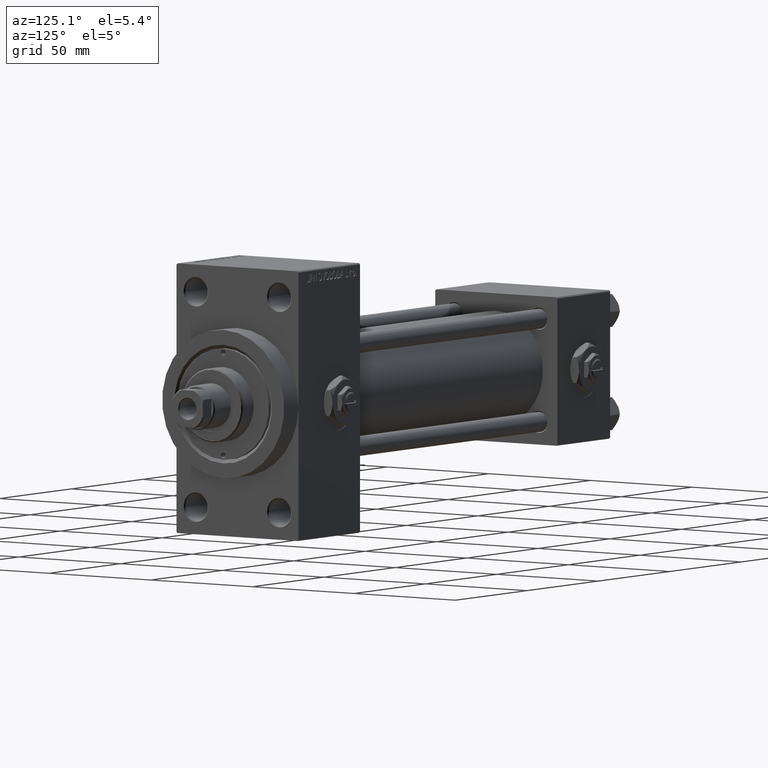
[diagram: clean part render]
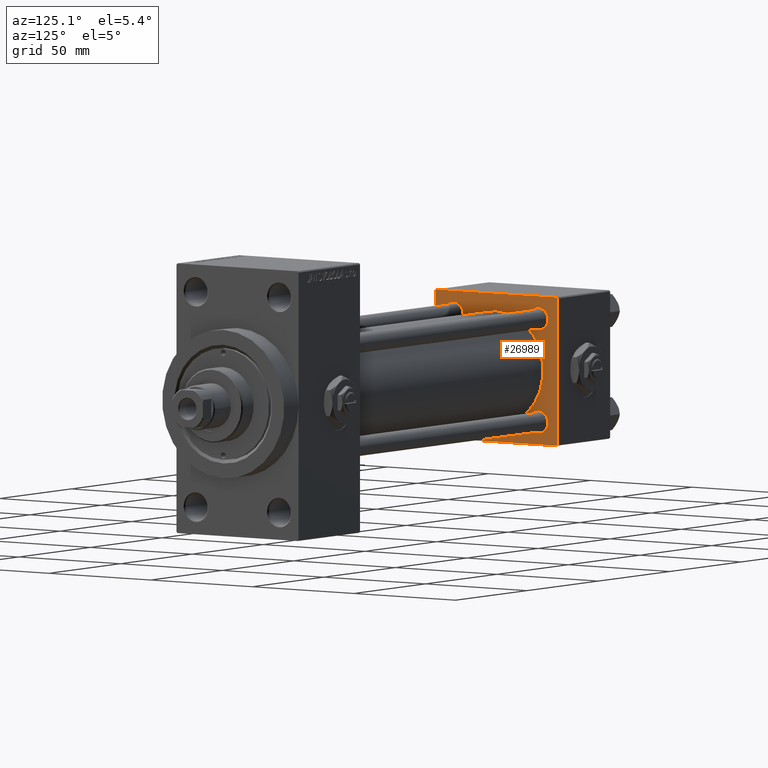
[diagram: same view with one face highlighted and labeled with its STEP entity id]
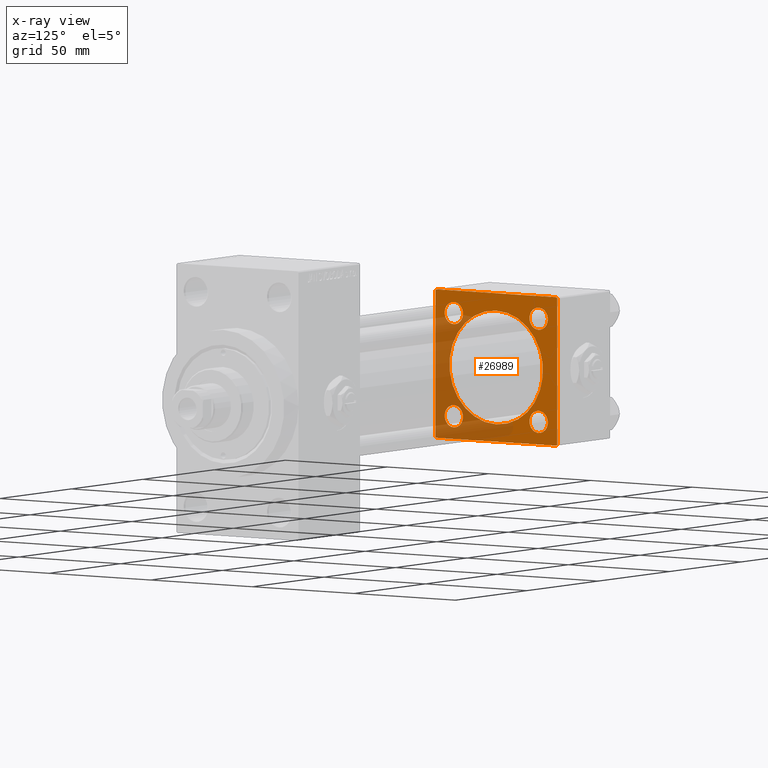
[diagram: x-ray of the same camera — body ghosted, the highlighted face saturated]
A machine part, auxiliary view. The second image highlights one B-rep face of the part: STEP entity #26989.
The next image is the same camera in x-ray: the body ghosted, the highlighted face saturated — about 37% of this face is hidden behind the body in this view.
In plain terms, the highlighted planar face has unit normal (-1, 0, 0).
Its self-contained STEP definition (entity closure, byte-faithful):
#57 = EDGE_LOOP ( 'NONE', ( #46427, #3626 ) ) ;
#232 = ORIENTED_EDGE ( 'NONE', *, *, #43964, .T. ) ;
#695 = VECTOR ( 'NONE', #1582, 1000.000000000000000 ) ;
#1582 = DIRECTION ( 'NONE',  ( 0.000000000000000000, 0.000000000000000000, -1.000000000000000000 ) ) ;
#2185 = DIRECTION ( 'NONE',  ( -1.000000000000000000, 0.000000000000000000, -0.000000000000000000 ) ) ;
#2260 = ORIENTED_EDGE ( 'NONE', *, *, #43808, .T. ) ;
#2485 = EDGE_CURVE ( 'NONE', #9506, #43344, #24490, .T. ) ;
#2680 = DIRECTION ( 'NONE',  ( 0.000000000000000000, -0.7071067811865474617, 0.7071067811865474617 ) ) ;
#2757 = FACE_BOUND ( 'NONE', #42486, .T. ) ;
#3626 = ORIENTED_EDGE ( 'NONE', *, *, #29939, .F. ) ;
#4741 = ORIENTED_EDGE ( 'NONE', *, *, #8929, .T. ) ;
#5419 = VECTOR ( 'NONE', #30300, 999.9999999999998863 ) ;
#5470 = VERTEX_POINT ( 'NONE', #23716 ) ;
#5826 = LINE ( 'NONE', #9607, #695 ) ;
#6515 = EDGE_LOOP ( 'NONE', ( #12097, #45250 ) ) ;
#7159 = EDGE_CURVE ( 'NONE', #9023, #9393, #46193, .T. ) ;
#7223 = CARTESIAN_POINT ( 'NONE',  ( 37.00000000000000711, -2.602085213965210642E-15, 23.00000000000000000 ) ) ;
#7308 = DIRECTION ( 'NONE',  ( -1.000000000000000000, 0.000000000000000000, -0.000000000000000000 ) ) ;
#8744 = EDGE_LOOP ( 'NONE', ( #23798, #15281 ) ) ;
#8929 = EDGE_CURVE ( 'NONE', #17032, #40009, #5826, .T. ) ;
#9023 = VERTEX_POINT ( 'NONE', #25350 ) ;
#9081 = DIRECTION ( 'NONE',  ( 0.000000000000000000, 0.000000000000000000, 1.000000000000000000 ) ) ;
#9112 = CARTESIAN_POINT ( 'NONE',  ( 37.00000000000000000, 20.84999999999999787, -20.85000000000000142 ) ) ;
#9158 = CARTESIAN_POINT ( 'NONE',  ( 37.00000000000000000, 29.99999999999999289, -29.50000000000000000 ) ) ;
#9327 = DIRECTION ( 'NONE',  ( -1.000000000000000000, 0.000000000000000000, -0.000000000000000000 ) ) ;
#9393 = VERTEX_POINT ( 'NONE', #10026 ) ;
#9506 = VERTEX_POINT ( 'NONE', #12765 ) ;
#9607 = CARTESIAN_POINT ( 'NONE',  ( 37.00000000000000000, -30.00000000000000000, 29.99999999999999289 ) ) ;
#9647 = EDGE_CURVE ( 'NONE', #40009, #21452, #29494, .T. ) ;
#10026 = CARTESIAN_POINT ( 'NONE',  ( 37.00000000000000000, 20.84999999999999787, 25.35000000000005826 ) ) ;
#10716 = EDGE_LOOP ( 'NONE', ( #11505, #16787 ) ) ;
#10924 = CARTESIAN_POINT ( 'NONE',  ( 37.00000000000000000, 29.99999999999999289, 29.50000000000000000 ) ) ;
#11505 = ORIENTED_EDGE ( 'NONE', *, *, #7159, .T. ) ;
#11671 = VERTEX_POINT ( 'NONE', #20429 ) ;
#11701 = LINE ( 'NONE', #45733, #32511 ) ;
#12097 = ORIENTED_EDGE ( 'NONE', *, *, #45258, .T. ) ;
#12618 = AXIS2_PLACEMENT_3D ( 'NONE', #46101, #38854, #42592 ) ;
#12765 = CARTESIAN_POINT ( 'NONE',  ( 37.00000000000000000, 20.84999999999999787, -16.34999999999994102 ) ) ;
#13050 = CARTESIAN_POINT ( 'NONE',  ( 37.00000000000000000, -29.49999999999998579, 29.99999999999999289 ) ) ;
#13473 = CIRCLE ( 'NONE', #41426, 4.500000000000059508 ) ;
#13943 = EDGE_CURVE ( 'NONE', #43344, #9506, #47854, .T. ) ;
#14317 = CARTESIAN_POINT ( 'NONE',  ( 37.00000000000000000, 0.000000000000000000, 0.000000000000000000 ) ) ;
#14565 = DIRECTION ( 'NONE',  ( -1.000000000000000000, 0.000000000000000000, -0.000000000000000000 ) ) ;
#15281 = ORIENTED_EDGE ( 'NONE', *, *, #2485, .T. ) ;
#15661 = EDGE_LOOP ( 'NONE', ( #39045, #232, #23139, #37702, #36273, #19677, #4741, #23109 ) ) ;
#16787 = ORIENTED_EDGE ( 'NONE', *, *, #47690, .T. ) ;
#17001 = CARTESIAN_POINT ( 'NONE',  ( 37.00000000000000000, 20.84999999999999787, -25.35000000000005826 ) ) ;
#17032 = VERTEX_POINT ( 'NONE', #46326 ) ;
#17117 = CARTESIAN_POINT ( 'NONE',  ( 37.00000000000000711, -2.602085213965210642E-15, 0.000000000000000000 ) ) ;
#17134 = CARTESIAN_POINT ( 'NONE',  ( 37.00000000000000000, -20.84999999999999076, -25.35000000000006182 ) ) ;
#17351 = DIRECTION ( 'NONE',  ( 1.000000000000000000, -0.000000000000000000, 0.000000000000000000 ) ) ;
#18046 = FACE_BOUND ( 'NONE', #10716, .T. ) ;
#18361 = AXIS2_PLACEMENT_3D ( 'NONE', #46349, #35099, #27835 ) ;
#18439 = EDGE_CURVE ( 'NONE', #46113, #5470, #32067, .T. ) ;
#18988 = CIRCLE ( 'NONE', #12618, 4.500000000000059508 ) ;
#19070 = EDGE_CURVE ( 'NONE', #47246, #20346, #29550, .T. ) ;
#19198 = CARTESIAN_POINT ( 'NONE',  ( 37.00000000000000000, -20.84999999999999076, 16.34999999999994458 ) ) ;
#19415 = EDGE_CURVE ( 'NONE', #11671, #48372, #34482, .T. ) ;
#19442 = EDGE_CURVE ( 'NONE', #39882, #21452, #24992, .T. ) ;
#19677 = ORIENTED_EDGE ( 'NONE', *, *, #41206, .T. ) ;
#20143 = VERTEX_POINT ( 'NONE', #9158 ) ;
#20346 = VERTEX_POINT ( 'NONE', #13050 ) ;
#20429 = CARTESIAN_POINT ( 'NONE',  ( 37.00000000000000000, -20.84999999999999076, -16.34999999999994458 ) ) ;
#20917 = CARTESIAN_POINT ( 'NONE',  ( 37.00000000000000000, -20.84999999999999076, -20.85000000000000497 ) ) ;
#20944 = EDGE_CURVE ( 'NONE', #32483, #37379, #44095, .T. ) ;
#21000 = CARTESIAN_POINT ( 'NONE',  ( 37.00000000000000000, -20.84999999999999076, -20.85000000000000497 ) ) ;
#21233 = DIRECTION ( 'NONE',  ( 0.000000000000000000, -1.000000000000000000, -1.156482317317871725E-16 ) ) ;
#21452 = VERTEX_POINT ( 'NONE', #30084 ) ;
#21794 = ORIENTED_EDGE ( 'NONE', *, *, #20944, .T. ) ;
#21813 = FACE_BOUND ( 'NONE', #8744, .T. ) ;
#22535 = AXIS2_PLACEMENT_3D ( 'NONE', #25947, #29955, #30210 ) ;
#22562 = VERTEX_POINT ( 'NONE', #10924 ) ;
#22589 = DIRECTION ( 'NONE',  ( 0.000000000000000000, 0.000000000000000000, 1.000000000000000000 ) ) ;
#22901 = VECTOR ( 'NONE', #2680, 1000.000000000000114 ) ;
#22968 = DIRECTION ( 'NONE',  ( -0.000000000000000000, -0.7071067811865474617, -0.7071067811865474617 ) ) ;
#23109 = ORIENTED_EDGE ( 'NONE', *, *, #9647, .T. ) ;
#23139 = ORIENTED_EDGE ( 'NONE', *, *, #41067, .F. ) ;
#23440 = AXIS2_PLACEMENT_3D ( 'NONE', #14317, #14565, #29824 ) ;
#23716 = CARTESIAN_POINT ( 'NONE',  ( 37.00000000000000711, 2.146024240737016609E-16, -23.00000000000000000 ) ) ;
#23798 = ORIENTED_EDGE ( 'NONE', *, *, #13943, .T. ) ;
#24090 = VECTOR ( 'NONE', #21233, 1000.000000000000000 ) ;
#24387 = DIRECTION ( 'NONE',  ( -1.000000000000000000, 0.000000000000000000, -0.000000000000000000 ) ) ;
#24490 = CIRCLE ( 'NONE', #46836, 4.500000000000059508 ) ;
#24639 = AXIS2_PLACEMENT_3D ( 'NONE', #37086, #9327, #44324 ) ;
#24992 = LINE ( 'NONE', #40264, #24090 ) ;
#25137 = CIRCLE ( 'NONE', #41136, 23.00000000000000000 ) ;
#25350 = CARTESIAN_POINT ( 'NONE',  ( 37.00000000000000000, 20.84999999999999787, 16.34999999999994102 ) ) ;
#25566 = FACE_BOUND ( 'NONE', #6515, .T. ) ;
#25796 = LINE ( 'NONE', #29807, #5419 ) ;
#25813 = FACE_OUTER_BOUND ( 'NONE', #15661, .T. ) ;
#25947 = CARTESIAN_POINT ( 'NONE',  ( 37.00000000000000000, -20.84999999999999076, 20.85000000000000497 ) ) ;
#26109 = VECTOR ( 'NONE', #39787, 1000.000000000000000 ) ;
#26437 = AXIS2_PLACEMENT_3D ( 'NONE', #17117, #17351, #43391 ) ;
#26989 = ADVANCED_FACE ( 'NONE', ( #25566, #21813, #2757, #18046, #33332, #25813 ), #48577, .F. ) ;
#27835 = DIRECTION ( 'NONE',  ( 0.000000000000000000, 0.000000000000000000, 1.000000000000000000 ) ) ;
#28319 = CARTESIAN_POINT ( 'NONE',  ( 37.00000000000000000, 29.49999999999997868, -30.00000000000000000 ) ) ;
#28835 = CARTESIAN_POINT ( 'NONE',  ( 37.00000000000000711, -2.602085213965210642E-15, 0.000000000000000000 ) ) ;
#29494 = LINE ( 'NONE', #48245, #48777 ) ;
#29550 = LINE ( 'NONE', #45034, #31261 ) ;
#29737 = LINE ( 'NONE', #40745, #22901 ) ;
#29807 = CARTESIAN_POINT ( 'NONE',  ( 37.00000000000000000, 29.99999999999999289, -29.50000000000000000 ) ) ;
#29824 = DIRECTION ( 'NONE',  ( -0.000000000000000000, 0.000000000000000000, 1.000000000000000000 ) ) ;
#29939 = EDGE_CURVE ( 'NONE', #5470, #46113, #25137, .T. ) ;
#29955 = DIRECTION ( 'NONE',  ( -1.000000000000000000, 0.000000000000000000, -0.000000000000000000 ) ) ;
#30084 = CARTESIAN_POINT ( 'NONE',  ( 37.00000000000000000, -29.50000000000000000, -30.00000000000000711 ) ) ;
#30210 = DIRECTION ( 'NONE',  ( 0.000000000000000000, 0.000000000000000000, 1.000000000000000000 ) ) ;
#30300 = DIRECTION ( 'NONE',  ( -0.000000000000000000, 0.7071067811865574537, 0.7071067811865376918 ) ) ;
#31261 = VECTOR ( 'NONE', #44792, 1000.000000000000000 ) ;
#31698 = CARTESIAN_POINT ( 'NONE',  ( 37.00000000000000000, 29.49999999999999289, 30.00000000000000000 ) ) ;
#31940 = DIRECTION ( 'NONE',  ( 0.000000000000000000, 0.000000000000000000, 1.000000000000000000 ) ) ;
#32067 = CIRCLE ( 'NONE', #26437, 23.00000000000000000 ) ;
#32483 = VERTEX_POINT ( 'NONE', #43661 ) ;
#32511 = VECTOR ( 'NONE', #22968, 1000.000000000000114 ) ;
#33332 = FACE_BOUND ( 'NONE', #57, .T. ) ;
#33503 = DIRECTION ( 'NONE',  ( 0.000000000000000000, 0.7071067811865474617, -0.7071067811865474617 ) ) ;
#33862 = CARTESIAN_POINT ( 'NONE',  ( 37.00000000000000000, 20.84999999999999787, -20.85000000000000142 ) ) ;
#34482 = CIRCLE ( 'NONE', #45653, 4.500000000000059508 ) ;
#35099 = DIRECTION ( 'NONE',  ( -1.000000000000000000, 0.000000000000000000, -0.000000000000000000 ) ) ;
#35864 = DIRECTION ( 'NONE',  ( 1.000000000000000000, -0.000000000000000000, 0.000000000000000000 ) ) ;
#36186 = DIRECTION ( 'NONE',  ( -1.000000000000000000, 0.000000000000000000, -0.000000000000000000 ) ) ;
#36273 = ORIENTED_EDGE ( 'NONE', *, *, #19070, .T. ) ;
#37086 = CARTESIAN_POINT ( 'NONE',  ( 37.00000000000000000, 20.84999999999999787, 20.85000000000000142 ) ) ;
#37379 = VERTEX_POINT ( 'NONE', #19198 ) ;
#37702 = ORIENTED_EDGE ( 'NONE', *, *, #41143, .T. ) ;
#38278 = AXIS2_PLACEMENT_3D ( 'NONE', #33862, #7308, #22589 ) ;
#38854 = DIRECTION ( 'NONE',  ( -1.000000000000000000, 0.000000000000000000, -0.000000000000000000 ) ) ;
#39045 = ORIENTED_EDGE ( 'NONE', *, *, #19442, .F. ) ;
#39651 = DIRECTION ( 'NONE',  ( 0.000000000000000000, 0.000000000000000000, 1.000000000000000000 ) ) ;
#39787 = DIRECTION ( 'NONE',  ( 0.000000000000000000, 0.000000000000000000, -1.000000000000000000 ) ) ;
#39882 = VERTEX_POINT ( 'NONE', #28319 ) ;
#40009 = VERTEX_POINT ( 'NONE', #48540 ) ;
#40264 = CARTESIAN_POINT ( 'NONE',  ( 37.00000000000000000, 29.99999999999999289, -30.00000000000000000 ) ) ;
#40745 = CARTESIAN_POINT ( 'NONE',  ( 37.00000000000000000, 29.49999999999999289, 30.00000000000000000 ) ) ;
#41067 = EDGE_CURVE ( 'NONE', #22562, #20143, #47512, .T. ) ;
#41136 = AXIS2_PLACEMENT_3D ( 'NONE', #28835, #35864, #9081 ) ;
#41143 = EDGE_CURVE ( 'NONE', #22562, #47246, #29737, .T. ) ;
#41206 = EDGE_CURVE ( 'NONE', #20346, #17032, #11701, .T. ) ;
#41426 = AXIS2_PLACEMENT_3D ( 'NONE', #20917, #36186, #31940 ) ;
#42486 = EDGE_LOOP ( 'NONE', ( #2260, #21794 ) ) ;
#42592 = DIRECTION ( 'NONE',  ( 0.000000000000000000, 0.000000000000000000, 1.000000000000000000 ) ) ;
#43344 = VERTEX_POINT ( 'NONE', #17001 ) ;
#43391 = DIRECTION ( 'NONE',  ( 0.000000000000000000, 0.000000000000000000, 1.000000000000000000 ) ) ;
#43515 = CARTESIAN_POINT ( 'NONE',  ( 37.00000000000000000, 29.99999999999999289, 30.00000000000000000 ) ) ;
#43661 = CARTESIAN_POINT ( 'NONE',  ( 37.00000000000000000, -20.84999999999999076, 25.35000000000006182 ) ) ;
#43808 = EDGE_CURVE ( 'NONE', #37379, #32483, #18988, .T. ) ;
#43964 = EDGE_CURVE ( 'NONE', #39882, #20143, #25796, .T. ) ;
#44095 = CIRCLE ( 'NONE', #22535, 4.500000000000059508 ) ;
#44324 = DIRECTION ( 'NONE',  ( 0.000000000000000000, 0.000000000000000000, 1.000000000000000000 ) ) ;
#44792 = DIRECTION ( 'NONE',  ( 0.000000000000000000, -1.000000000000000000, -1.156482317317871725E-16 ) ) ;
#45034 = CARTESIAN_POINT ( 'NONE',  ( 37.00000000000000000, 29.99999999999999289, 30.00000000000000000 ) ) ;
#45250 = ORIENTED_EDGE ( 'NONE', *, *, #19415, .T. ) ;
#45258 = EDGE_CURVE ( 'NONE', #48372, #11671, #13473, .T. ) ;
#45653 = AXIS2_PLACEMENT_3D ( 'NONE', #21000, #2185, #48736 ) ;
#45733 = CARTESIAN_POINT ( 'NONE',  ( 37.00000000000000000, -30.00000000000000000, 29.49999999999999289 ) ) ;
#46101 = CARTESIAN_POINT ( 'NONE',  ( 37.00000000000000000, -20.84999999999999076, 20.85000000000000497 ) ) ;
#46113 = VERTEX_POINT ( 'NONE', #7223 ) ;
#46193 = CIRCLE ( 'NONE', #24639, 4.500000000000059508 ) ;
#46326 = CARTESIAN_POINT ( 'NONE',  ( 37.00000000000000000, -30.00000000000000000, 29.49999999999999289 ) ) ;
#46349 = CARTESIAN_POINT ( 'NONE',  ( 37.00000000000000000, 20.84999999999999787, 20.85000000000000142 ) ) ;
#46427 = ORIENTED_EDGE ( 'NONE', *, *, #18439, .F. ) ;
#46836 = AXIS2_PLACEMENT_3D ( 'NONE', #9112, #24387, #39651 ) ;
#47246 = VERTEX_POINT ( 'NONE', #31698 ) ;
#47512 = LINE ( 'NONE', #43515, #26109 ) ;
#47690 = EDGE_CURVE ( 'NONE', #9393, #9023, #47919, .T. ) ;
#47854 = CIRCLE ( 'NONE', #38278, 4.500000000000059508 ) ;
#47919 = CIRCLE ( 'NONE', #18361, 4.500000000000059508 ) ;
#48245 = CARTESIAN_POINT ( 'NONE',  ( 37.00000000000000000, -29.50000000000001066, -30.00000000000000711 ) ) ;
#48372 = VERTEX_POINT ( 'NONE', #17134 ) ;
#48540 = CARTESIAN_POINT ( 'NONE',  ( 37.00000000000000000, -30.00000000000000000, -29.50000000000001776 ) ) ;
#48577 = PLANE ( 'NONE',  #23440 ) ;
#48736 = DIRECTION ( 'NONE',  ( 0.000000000000000000, 0.000000000000000000, 1.000000000000000000 ) ) ;
#48777 = VECTOR ( 'NONE', #33503, 1000.000000000000114 ) ;